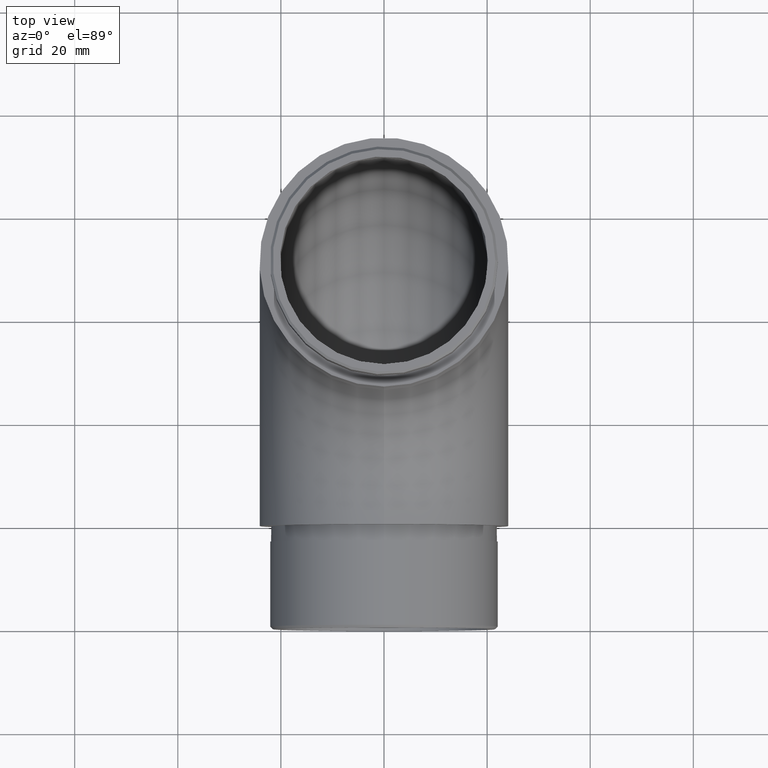
[diagram: clean part render]
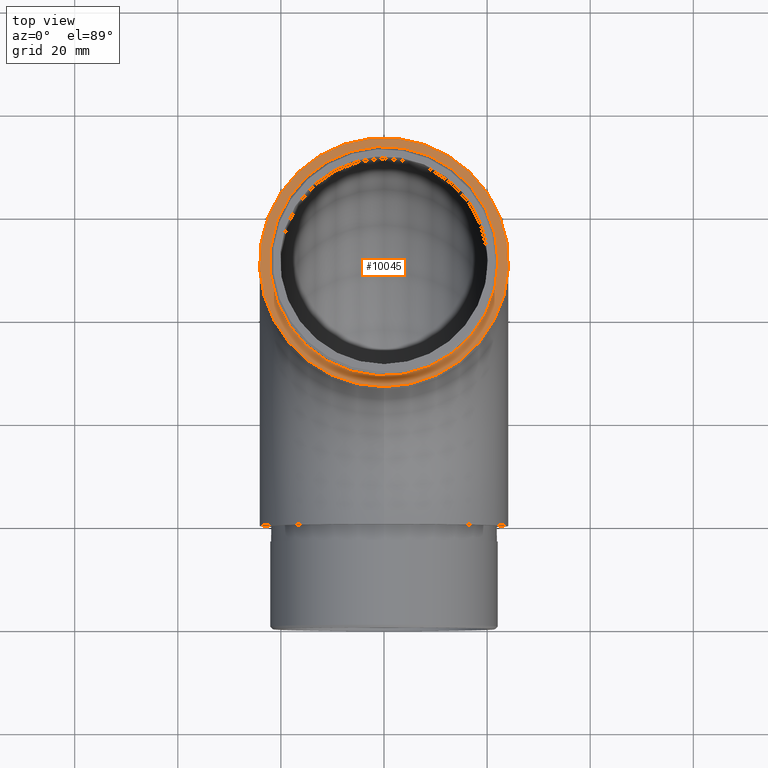
[diagram: same view with one face highlighted and labeled with its STEP entity id]
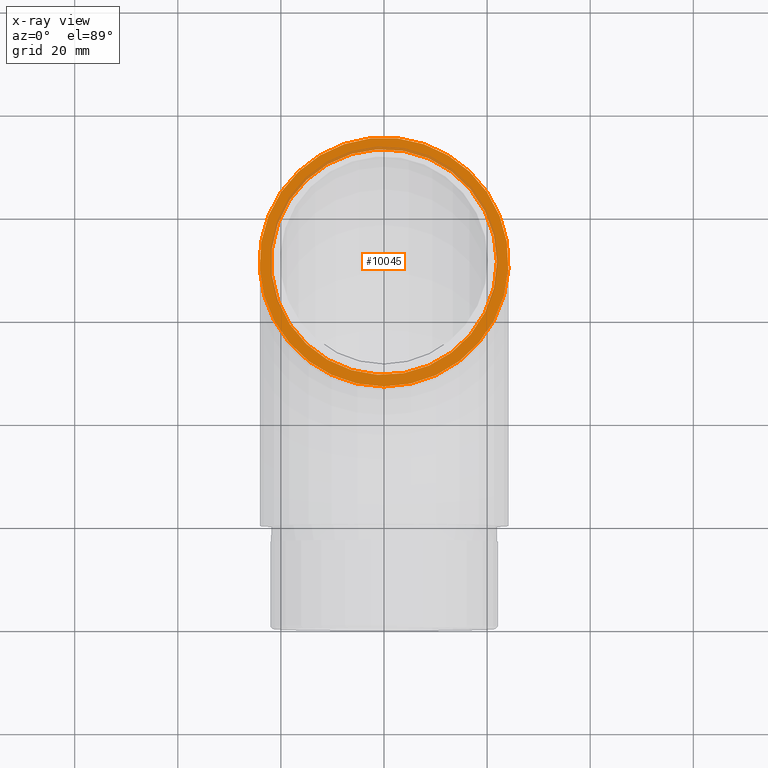
[diagram: x-ray of the same camera — body ghosted, the highlighted face saturated]
A machine part, top view. The second image highlights one B-rep face of the part: STEP entity #10045.
The next image is the same camera in x-ray: the body ghosted, the highlighted face saturated — about 10% of this face is hidden behind the body in this view.
In plain terms, the highlighted planar face has unit normal (0, 0, 1).
Its self-contained STEP definition (entity closure, byte-faithful):
#416 = DIRECTION ( 'NONE',  ( 0.0000000000000000000, -1.000000000000000000, 6.123233995736766000E-017 ) ) ;
#1299 = CARTESIAN_POINT ( 'NONE',  ( 0.0000000000000000000, 50.34999999999998000, 74.50000000000000000 ) ) ;
#2062 = DIRECTION ( 'NONE',  ( 0.0000000000000000000, 6.123233995736766000E-017, 1.000000000000000000 ) ) ;
#2171 = CARTESIAN_POINT ( 'NONE',  ( 21.90000000000000200, 50.34999999999998000, 74.50000000000000000 ) ) ;
#2295 = CARTESIAN_POINT ( 'NONE',  ( 0.0000000000000000000, 26.19999999999997400, 74.50000000000000000 ) ) ;
#2811 = EDGE_CURVE ( 'NONE', #5168, #5168, #6699, .T. ) ;
#3420 = EDGE_CURVE ( 'NONE', #4588, #4588, #5212, .T. ) ;
#4091 = CARTESIAN_POINT ( 'NONE',  ( 0.0000000000000000000, 50.34999999999998000, 74.50000000000000000 ) ) ;
#4588 = VERTEX_POINT ( 'NONE', #2295 ) ;
#5168 = VERTEX_POINT ( 'NONE', #2171 ) ;
#5212 = CIRCLE ( 'NONE', #6976, 24.15000000000000600 ) ;
#5275 = AXIS2_PLACEMENT_3D ( 'NONE', #1299, #2062, #416 ) ;
#5550 = DIRECTION ( 'NONE',  ( 1.000000000000000000, 0.0000000000000000000, 0.0000000000000000000 ) ) ;
#6286 = CARTESIAN_POINT ( 'NONE',  ( 0.0000000000000000000, 50.34999999999998000, 74.50000000000000000 ) ) ;
#6545 = EDGE_LOOP ( 'NONE', ( #7574 ) ) ;
#6699 = CIRCLE ( 'NONE', #7430, 21.90000000000000200 ) ;
#6750 = FACE_OUTER_BOUND ( 'NONE', #7619, .T. ) ;
#6976 = AXIS2_PLACEMENT_3D ( 'NONE', #4091, #11550, #11512 ) ;
#7430 = AXIS2_PLACEMENT_3D ( 'NONE', #6286, #10136, #5550 ) ;
#7574 = ORIENTED_EDGE ( 'NONE', *, *, #2811, .F. ) ;
#7619 = EDGE_LOOP ( 'NONE', ( #10214 ) ) ;
#8528 = PLANE ( 'NONE',  #5275 ) ;
#10045 = ADVANCED_FACE ( 'NONE', ( #6750, #10893 ), #8528, .T. ) ;
#10136 = DIRECTION ( 'NONE',  ( 0.0000000000000000000, 0.0000000000000000000, 1.000000000000000000 ) ) ;
#10214 = ORIENTED_EDGE ( 'NONE', *, *, #3420, .T. ) ;
#10893 = FACE_BOUND ( 'NONE', #6545, .T. ) ;
#11512 = DIRECTION ( 'NONE',  ( 0.0000000000000000000, -1.000000000000000000, 0.0000000000000000000 ) ) ;
#11550 = DIRECTION ( 'NONE',  ( 0.0000000000000000000, 6.123233995736766000E-017, 1.000000000000000000 ) ) ;